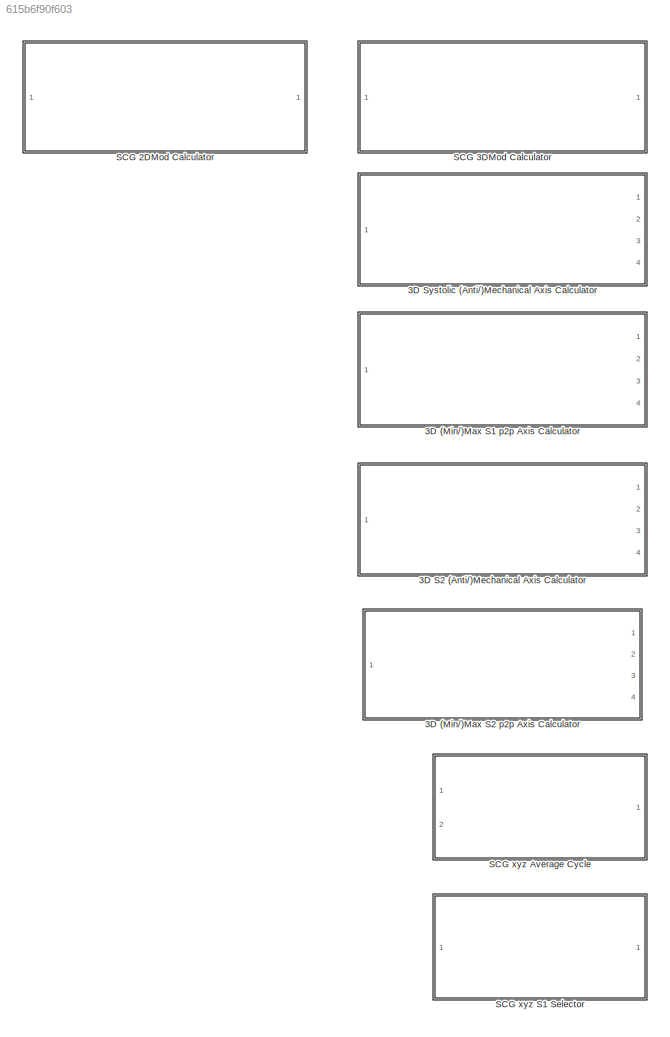
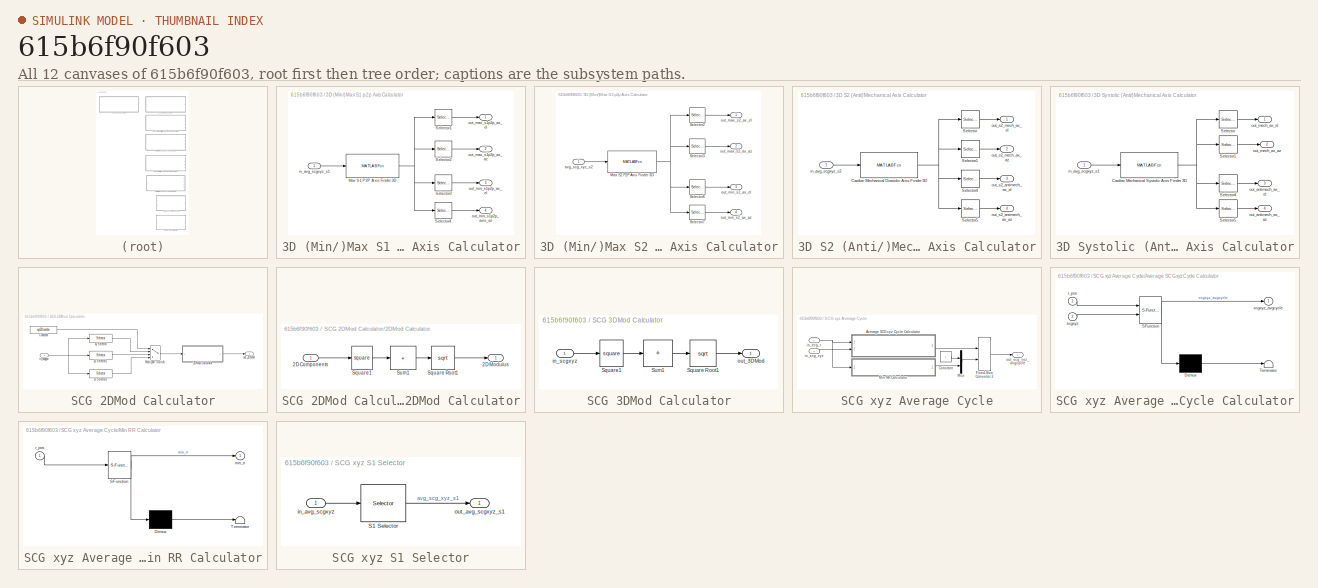
[diagram: thumbnail index - all 12 canvases of the model, root first then tree order]
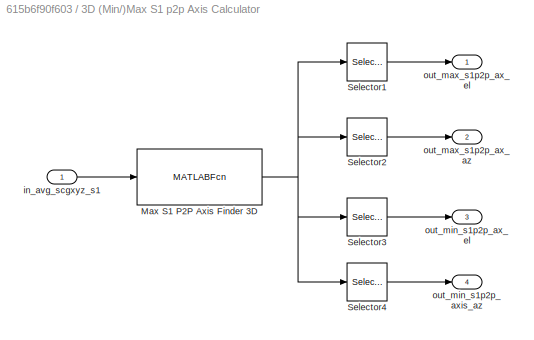
MODEL slx_615b6f90f603
KIND library
CONFIG AbsTol = auto
CONFIG EnableMultiTasking = off
CONFIG FixedStep = auto
CONFIG MaxStep = auto
CONFIG MinStep = auto
CONFIG RelTol = 1e-3
CONFIG SampleTimeConstraint = Unconstrained
CONFIG SolverName = VariableStepAuto
CONFIG StartTime = 0.0
CONFIG StopTime = 10.0
BLOCK [SubSystem] 3D (Min//)Max S1 p2p Axis Calculator
  Ports = [1, 4]
  RequestExecContextInheritance = off
BLOCK [MATLABFcn] 3D (Min//)Max S1 p2p Axis Calculator/Max S1 P2P Axis Finder 3D
  MATLABFcn = cardiac_max_s1p2p_axis_finder
  Output1D = off
  OutputDimensions = 4
  Ports = [1, 1]
BLOCK [Selector] 3D (Min//)Max S1 p2p Axis Calculator/Selector1
  IndexOptions = Index vector (dialog)
  Indices = [1]
  InputPortWidth = 4
  OutputSizes = 1
  Ports = [1, 1]
BLOCK [Selector] 3D (Min//)Max S1 p2p Axis Calculator/Selector2
  IndexOptions = Index vector (dialog)
  Indices = [2]
  InputPortWidth = 4
  OutputSizes = 1
  Ports = [1, 1]
BLOCK [Selector] 3D (Min//)Max S1 p2p Axis Calculator/Selector3
  IndexOptions = Index vector (dialog)
  Indices = [3]
  InputPortWidth = 4
  OutputSizes = 1
  Ports = [1, 1]
BLOCK [Selector] 3D (Min//)Max S1 p2p Axis Calculator/Selector4
  IndexOptions = Index vector (dialog)
  Indices = [4]
  InputPortWidth = 4
  OutputSizes = 1
  Ports = [1, 1]
BLOCK [Inport] 3D (Min//)Max S1 p2p Axis Calculator/in_avg_scgxyz_s1
  NameLocation = left
BLOCK [Outport] 3D (Min//)Max S1 p2p Axis Calculator/out_max_s1p2p_ax_az
  NameLocation = right
  Port = 2
BLOCK [Outport] 3D (Min//)Max S1 p2p Axis Calculator/out_max_s1p2p_ax_el
  NameLocation = right
BLOCK [Outport] 3D (Min//)Max S1 p2p Axis Calculator/out_min_s1p2p_ax_el
  NameLocation = right
  Port = 3
BLOCK [Outport] 3D (Min//)Max S1 p2p Axis Calculator/out_min_s1p2p_axis_az
  NameLocation = right
  Port = 4
BLOCK [SubSystem] 3D (Min//)Max S2 p2p Axis Calculator
  Ports = [1, 4]
  RequestExecContextInheritance = off
BLOCK [MATLABFcn] 3D (Min//)Max S2 p2p Axis Calculator/Max S2 P2P  Axis Finder 3D
  MATLABFcn = cardiac_max_s2p2p_axis_finder_3D
  Output1D = off
  OutputDimensions = 4
  Ports = [1, 1]
BLOCK [Selector] 3D (Min//)Max S2 p2p Axis Calculator/Selector2
  IndexOptions = Index vector (dialog)
  Indices = [1]
  InputPortWidth = 4
  OutputSizes = 1
  Ports = [1, 1]
BLOCK [Selector] 3D (Min//)Max S2 p2p Axis Calculator/Selector3
  IndexOptions = Index vector (dialog)
  Indices = [2]
  InputPortWidth = 4
  OutputSizes = 1
  Ports = [1, 1]
BLOCK [Selector] 3D (Min//)Max S2 p2p Axis Calculator/Selector6
  IndexOptions = Index vector (dialog)
  Indices = [3]
  InputPortWidth = 4
  OutputSizes = 1
  Ports = [1, 1]
BLOCK [Selector] 3D (Min//)Max S2 p2p Axis Calculator/Selector7
  IndexOptions = Index vector (dialog)
  Indices = [4]
  InputPortWidth = 4
  OutputSizes = 1
  Ports = [1, 1]
BLOCK [Inport] 3D (Min//)Max S2 p2p Axis Calculator/avg_scg_xyz_s2
  NameLocation = left
BLOCK [Outport] 3D (Min//)Max S2 p2p Axis Calculator/out_max_s2_ax_az
  NameLocation = right
  Port = 2
BLOCK [Outport] 3D (Min//)Max S2 p2p Axis Calculator/out_max_s2_ax_el
  NameLocation = right
BLOCK [Outport] 3D (Min//)Max S2 p2p Axis Calculator/out_min_s2_ax_az
  NameLocation = right
  Port = 4
BLOCK [Outport] 3D (Min//)Max S2 p2p Axis Calculator/out_min_s2_ax_el
  NameLocation = right
  Port = 3
BLOCK [SubSystem] 3D S2 (Anti//)Mechanical Axis Calculator
  Ports = [1, 4]
  RequestExecContextInheritance = off
BLOCK [MATLABFcn] 3D S2 (Anti//)Mechanical Axis Calculator/Cardiac Mechanical Diastolic Axis Finder 3D
  MATLABFcn = cardiac_mech_diastolic_axis_finder_3D
  Output1D = off
  OutputDimensions = 4
  Ports = [1, 1]
BLOCK [Selector] 3D S2 (Anti//)Mechanical Axis Calculator/Selector
  IndexOptions = Index vector (dialog)
  Indices = [1]
  InputPortWidth = 4
  OutputSizes = 1
  Ports = [1, 1]
BLOCK [Selector] 3D S2 (Anti//)Mechanical Axis Calculator/Selector1
  IndexOptions = Index vector (dialog)
  Indices = [2]
  InputPortWidth = 4
  OutputSizes = 1
  Ports = [1, 1]
BLOCK [Selector] 3D S2 (Anti//)Mechanical Axis Calculator/Selector4
  IndexOptions = Index vector (dialog)
  Indices = [3]
  InputPortWidth = 4
  OutputSizes = 1
  Ports = [1, 1]
BLOCK [Selector] 3D S2 (Anti//)Mechanical Axis Calculator/Selector5
  IndexOptions = Index vector (dialog)
  Indices = [4]
  InputPortWidth = 4
  OutputSizes = 1
  Ports = [1, 1]
BLOCK [Inport] 3D S2 (Anti//)Mechanical Axis Calculator/in_avg_scgxyz_s2
BLOCK [Outport] 3D S2 (Anti//)Mechanical Axis Calculator/out_s2_antimech_ax_az
  NameLocation = right
  Port = 4
BLOCK [Outport] 3D S2 (Anti//)Mechanical Axis Calculator/out_s2_antimech_ax_el
  NameLocation = right
  Port = 3
BLOCK [Outport] 3D S2 (Anti//)Mechanical Axis Calculator/out_s2_mech_ax_az
  NameLocation = right
  Port = 2
BLOCK [Outport] 3D S2 (Anti//)Mechanical Axis Calculator/out_s2_mech_ax_el
  NameLocation = right
BLOCK [SubSystem] 3D Systolic (Anti//)Mechanical Axis Calculator
  Ports = [1, 4]
  RequestExecContextInheritance = off
BLOCK [MATLABFcn] 3D Systolic (Anti//)Mechanical Axis Calculator/Cardiac Mechanical Systolic Axis Finder 3D
  MATLABFcn = cardiac_mech_systolic_axis_finder_3D
  Output1D = off
  OutputDimensions = 4
  Ports = [1, 1]
BLOCK [Selector] 3D Systolic (Anti//)Mechanical Axis Calculator/Selector
  IndexOptions = Index vector (dialog)
  Indices = [1]
  InputPortWidth = 4
  OutputSizes = 1
  Ports = [1, 1]
BLOCK [Selector] 3D Systolic (Anti//)Mechanical Axis Calculator/Selector1
  IndexOptions = Index vector (dialog)
  Indices = [2]
  InputPortWidth = 4
  OutputSizes = 1
  Ports = [1, 1]
BLOCK [Selector] 3D Systolic (Anti//)Mechanical Axis Calculator/Selector4
  IndexOptions = Index vector (dialog)
  Indices = [3]
  InputPortWidth = 4
  OutputSizes = 1
  Ports = [1, 1]
BLOCK [Selector] 3D Systolic (Anti//)Mechanical Axis Calculator/Selector5
  IndexOptions = Index vector (dialog)
  Indices = [4]
  InputPortWidth = 4
  OutputSizes = 1
  Ports = [1, 1]
BLOCK [Inport] 3D Systolic (Anti//)Mechanical Axis Calculator/in_avg_scgxyz_s1
BLOCK [Outport] 3D Systolic (Anti//)Mechanical Axis Calculator/out_antimech_ax_az
  NameLocation = right
  Port = 4
BLOCK [Outport] 3D Systolic (Anti//)Mechanical Axis Calculator/out_antimech_ax_el
  NameLocation = right
  Port = 3
BLOCK [Outport] 3D Systolic (Anti//)Mechanical Axis Calculator/out_mech_ax_az
  NameLocation = right
  Port = 2
BLOCK [Outport] 3D Systolic (Anti//)Mechanical Axis Calculator/out_mech_ax_el
  NameLocation = right
BLOCK [SubSystem] SCG 2DMod Calculator
  Ports = [1, 1]
  RequestExecContextInheritance = off
BLOCK [SubSystem] SCG 2DMod Calculator/2DMod Calculator
  Ports = [1, 1]
  RequestExecContextInheritance = off
BLOCK [Inport] SCG 2DMod Calculator/2DMod Calculator/2D Components
BLOCK [Outport] SCG 2DMod Calculator/2DMod Calculator/2D Modulus
  VectorParamsAs1DForOutWhenUnconnected = off
BLOCK [Sqrt] SCG 2DMod Calculator/2DMod Calculator/Square Root1
BLOCK [Math] SCG 2DMod Calculator/2DMod Calculator/Square1
  Operator = square
  Ports = [1, 1]
  SignedPower = on
BLOCK [Sum] SCG 2DMod Calculator/2DMod Calculator/Sum1
  CollapseDim = 2
  CollapseMode = Specified dimension
  IconShape = rectangular
  Inputs = +
  Ports = [1, 1]
BLOCK [Constant] SCG 2DMod Calculator/Constant
  Value = xyz2Dcombo
BLOCK [MultiPortSwitch] SCG 2DMod Calculator/Multiport Switch
  InputSameDT = off
  Ports = [4, 1]
  SaturateOnIntegerOverflow = off
BLOCK [Inport] SCG 2DMod Calculator/in_scgxyz
BLOCK [Outport] SCG 2DMod Calculator/out_2DMod
  VectorParamsAs1DForOutWhenUnconnected = off
BLOCK [Selector] SCG 2DMod Calculator/xy Selector
  IndexOptions = Select all,Index vector (dialog)
  Indices = [1:min(analyses.ecg.RR)],[1 2]
  NumberOfDimensions = 2
  OutputSizes = 1,1
  Ports = [1, 1]
BLOCK [Selector] SCG 2DMod Calculator/xz Selector2
  IndexOptions = Select all,Index vector (dialog)
  Indices = [1:min(analyses.ecg.RR)],[1 3]
  NumberOfDimensions = 2
  OutputSizes = 1,1
  Ports = [1, 1]
BLOCK [Selector] SCG 2DMod Calculator/yz Selector1
  IndexOptions = Select all,Index vector (dialog)
  Indices = [1:min(analyses.ecg.RR)],[2 3]
  NumberOfDimensions = 2
  OutputSizes = 1,1
  Ports = [1, 1]
BLOCK [SubSystem] SCG 3DMod Calculator
  Ports = [1, 1]
  RequestExecContextInheritance = off
BLOCK [Sqrt] SCG 3DMod Calculator/Square Root1
BLOCK [Math] SCG 3DMod Calculator/Square1
  Operator = square
  Ports = [1, 1]
  SignedPower = on
BLOCK [Sum] SCG 3DMod Calculator/Sum1
  CollapseDim = 2
  CollapseMode = Specified dimension
  IconShape = rectangular
  Inputs = +
  Ports = [1, 1]
BLOCK [Inport] SCG 3DMod Calculator/in_scgxyz
BLOCK [Outport] SCG 3DMod Calculator/out_3DMod
  VectorParamsAs1DForOutWhenUnconnected = off
BLOCK [SubSystem] SCG xyz Average Cycle
  Ports = [2, 1]
  RequestExecContextInheritance = off
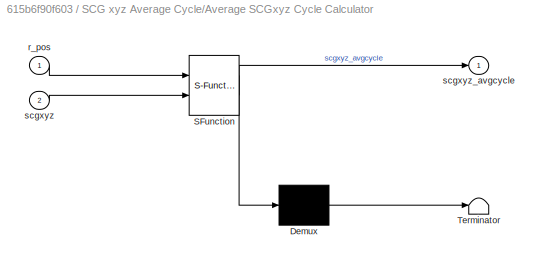
BLOCK [SubSystem] SCG xyz Average Cycle/Average SCGxyz Cycle Calculator
  ErrorFcn = Stateflow.Translate.translate
  NameLocation = top
  PermitHierarchicalResolution = ExplicitOnly
  Ports = [2, 1]
  RequestExecContextInheritance = off
  SFBlockType = MATLAB Function
  TreatAsAtomicUnit = on
BLOCK [Demux] SCG xyz Average Cycle/Average SCGxyz Cycle Calculator/ Demux 
  Outputs = 1
  Ports = [1, 1]
BLOCK [S-Function] SCG xyz Average Cycle/Average SCGxyz Cycle Calculator/ SFunction 
  EnableBusSupport = on
  FunctionName = sf_sfun
  PortCounts = [2 2]
  Ports = [2, 2]
  SFcnIsStateOwnerBlock = off
  SFunctionDeploymentMode = off
  Tag = Stateflow S-Function 15
BLOCK [Terminator] SCG xyz Average Cycle/Average SCGxyz Cycle Calculator/ Terminator 
BLOCK [Inport] SCG xyz Average Cycle/Average SCGxyz Cycle Calculator/r_pos
BLOCK [Inport] SCG xyz Average Cycle/Average SCGxyz Cycle Calculator/scgxyz
  Port = 2
BLOCK [Outport] SCG xyz Average Cycle/Average SCGxyz Cycle Calculator/scgxyz_avgcycle
  VectorParamsAs1DForOutWhenUnconnected = off
BLOCK [Constant] SCG xyz Average Cycle/Constant
BLOCK [Selector] SCG xyz Average Cycle/Fixed-Size Converter 2
  IndexOptions = Starting and ending indices (port),Index vector (dialog)
  Indices = [1:min(analyses.ecg.RR)],[1 2 3]
  NumberOfDimensions = 2
  OutputSizes = 1,1
  Ports = [2, 1]
BLOCK [SubSystem] SCG xyz Average Cycle/Min RR Calculator
  ErrorFcn = Stateflow.Translate.translate
  PermitHierarchicalResolution = ExplicitOnly
  Ports = [1, 1]
  RequestExecContextInheritance = off
  SFBlockType = MATLAB Function
  TreatAsAtomicUnit = on
BLOCK [Demux] SCG xyz Average Cycle/Min RR Calculator/ Demux 
  Outputs = 1
  Ports = [1, 1]
BLOCK [S-Function] SCG xyz Average Cycle/Min RR Calculator/ SFunction 
  EnableBusSupport = on
  FunctionName = sf_sfun
  PortCounts = [1 2]
  Ports = [1, 2]
  SFcnIsStateOwnerBlock = off
  SFunctionDeploymentMode = off
  Tag = Stateflow S-Function 16
BLOCK [Terminator] SCG xyz Average Cycle/Min RR Calculator/ Terminator 
BLOCK [Outport] SCG xyz Average Cycle/Min RR Calculator/min_rr
  VectorParamsAs1DForOutWhenUnconnected = off
BLOCK [Inport] SCG xyz Average Cycle/Min RR Calculator/r_pos
BLOCK [Mux] SCG xyz Average Cycle/Mux
  DisplayOption = bar
  Inputs = 2
  Ports = [2, 1]
BLOCK [Inport] SCG xyz Average Cycle/in_ecg_r
  NameLocation = left
BLOCK [Inport] SCG xyz Average Cycle/in_scg_xyz
  NameLocation = left
  Port = 2
BLOCK [Outport] SCG xyz Average Cycle/out_scg_xyz_avgcycle
  NameLocation = right
  VectorParamsAs1DForOutWhenUnconnected = off
BLOCK [SubSystem] SCG xyz S1 Selector
  Ports = [1, 1]
  RequestExecContextInheritance = off
BLOCK [Selector] SCG xyz S1 Selector/S1 Selector
  IndexOptions = Index vector (dialog),Index vector (dialog)
  Indices = [1:fs*0.2],[1 2 3]
  InputPortWidth = 3
  NumberOfDimensions = 2
  OutputSizes = 1,1
  Ports = [1, 1]
BLOCK [Inport] SCG xyz S1 Selector/in_avg_scgxyz
  NameLocation = left
BLOCK [Outport] SCG xyz S1 Selector/out_avg_scgxyz_s1
  NameLocation = right
NET 3D (Min//)Max S1 p2p Axis Calculator/Max S1 P2P Axis Finder 3D:1 -> 3D (Min//)Max S1 p2p Axis Calculator/Selector1:1, 3D (Min//)Max S1 p2p Axis Calculator/Selector2:1, 3D (Min//)Max S1 p2p Axis Calculator/Selector3:1, 3D (Min//)Max S1 p2p Axis Calculator/Selector4:1
LINE 3D (Min//)Max S1 p2p Axis Calculator/Selector1:1 -> 3D (Min//)Max S1 p2p Axis Calculator/out_max_s1p2p_ax_el:1
LINE 3D (Min//)Max S1 p2p Axis Calculator/Selector2:1 -> 3D (Min//)Max S1 p2p Axis Calculator/out_max_s1p2p_ax_az:1
LINE 3D (Min//)Max S1 p2p Axis Calculator/Selector3:1 -> 3D (Min//)Max S1 p2p Axis Calculator/out_min_s1p2p_ax_el:1
LINE 3D (Min//)Max S1 p2p Axis Calculator/Selector4:1 -> 3D (Min//)Max S1 p2p Axis Calculator/out_min_s1p2p_axis_az:1
LINE 3D (Min//)Max S1 p2p Axis Calculator/in_avg_scgxyz_s1:1 -> 3D (Min//)Max S1 p2p Axis Calculator/Max S1 P2P Axis Finder 3D:1
NET 3D (Min//)Max S2 p2p Axis Calculator/Max S2 P2P  Axis Finder 3D:1 -> 3D (Min//)Max S2 p2p Axis Calculator/Selector2:1, 3D (Min//)Max S2 p2p Axis Calculator/Selector3:1, 3D (Min//)Max S2 p2p Axis Calculator/Selector6:1, 3D (Min//)Max S2 p2p Axis Calculator/Selector7:1
LINE 3D (Min//)Max S2 p2p Axis Calculator/Selector2:1 -> 3D (Min//)Max S2 p2p Axis Calculator/out_max_s2_ax_el:1
LINE 3D (Min//)Max S2 p2p Axis Calculator/Selector3:1 -> 3D (Min//)Max S2 p2p Axis Calculator/out_max_s2_ax_az:1
LINE 3D (Min//)Max S2 p2p Axis Calculator/Selector6:1 -> 3D (Min//)Max S2 p2p Axis Calculator/out_min_s2_ax_el:1
LINE 3D (Min//)Max S2 p2p Axis Calculator/Selector7:1 -> 3D (Min//)Max S2 p2p Axis Calculator/out_min_s2_ax_az:1
LINE 3D (Min//)Max S2 p2p Axis Calculator/avg_scg_xyz_s2:1 -> 3D (Min//)Max S2 p2p Axis Calculator/Max S2 P2P  Axis Finder 3D:1
NET 3D S2 (Anti//)Mechanical Axis Calculator/Cardiac Mechanical Diastolic Axis Finder 3D:1 -> 3D S2 (Anti//)Mechanical Axis Calculator/Selector1:1, 3D S2 (Anti//)Mechanical Axis Calculator/Selector4:1, 3D S2 (Anti//)Mechanical Axis Calculator/Selector5:1, 3D S2 (Anti//)Mechanical Axis Calculator/Selector:1
LINE 3D S2 (Anti//)Mechanical Axis Calculator/Selector1:1 -> 3D S2 (Anti//)Mechanical Axis Calculator/out_s2_mech_ax_az:1
LINE 3D S2 (Anti//)Mechanical Axis Calculator/Selector4:1 -> 3D S2 (Anti//)Mechanical Axis Calculator/out_s2_antimech_ax_el:1
LINE 3D S2 (Anti//)Mechanical Axis Calculator/Selector5:1 -> 3D S2 (Anti//)Mechanical Axis Calculator/out_s2_antimech_ax_az:1
LINE 3D S2 (Anti//)Mechanical Axis Calculator/Selector:1 -> 3D S2 (Anti//)Mechanical Axis Calculator/out_s2_mech_ax_el:1
LINE 3D S2 (Anti//)Mechanical Axis Calculator/in_avg_scgxyz_s2:1 -> 3D S2 (Anti//)Mechanical Axis Calculator/Cardiac Mechanical Diastolic Axis Finder 3D:1
NET 3D Systolic (Anti//)Mechanical Axis Calculator/Cardiac Mechanical Systolic Axis Finder 3D:1 -> 3D Systolic (Anti//)Mechanical Axis Calculator/Selector1:1, 3D Systolic (Anti//)Mechanical Axis Calculator/Selector4:1, 3D Systolic (Anti//)Mechanical Axis Calculator/Selector5:1, 3D Systolic (Anti//)Mechanical Axis Calculator/Selector:1
LINE 3D Systolic (Anti//)Mechanical Axis Calculator/Selector1:1 -> 3D Systolic (Anti//)Mechanical Axis Calculator/out_mech_ax_az:1
LINE 3D Systolic (Anti//)Mechanical Axis Calculator/Selector4:1 -> 3D Systolic (Anti//)Mechanical Axis Calculator/out_antimech_ax_el:1
LINE 3D Systolic (Anti//)Mechanical Axis Calculator/Selector5:1 -> 3D Systolic (Anti//)Mechanical Axis Calculator/out_antimech_ax_az:1
LINE 3D Systolic (Anti//)Mechanical Axis Calculator/Selector:1 -> 3D Systolic (Anti//)Mechanical Axis Calculator/out_mech_ax_el:1
LINE 3D Systolic (Anti//)Mechanical Axis Calculator/in_avg_scgxyz_s1:1 -> 3D Systolic (Anti//)Mechanical Axis Calculator/Cardiac Mechanical Systolic Axis Finder 3D:1
LINE SCG 2DMod Calculator/2DMod Calculator/2D Components:1 -> SCG 2DMod Calculator/2DMod Calculator/Square1:1
LINE SCG 2DMod Calculator/2DMod Calculator/Square Root1:1 -> SCG 2DMod Calculator/2DMod Calculator/2D Modulus:1
LINE SCG 2DMod Calculator/2DMod Calculator/Square1:1 -> SCG 2DMod Calculator/2DMod Calculator/Sum1:1
LINE SCG 2DMod Calculator/2DMod Calculator/Sum1:1 -> SCG 2DMod Calculator/2DMod Calculator/Square Root1:1
LINE SCG 2DMod Calculator/2DMod Calculator:1 -> SCG 2DMod Calculator/out_2DMod:1
LINE SCG 2DMod Calculator/Constant:1 -> SCG 2DMod Calculator/Multiport Switch:1
LINE SCG 2DMod Calculator/Multiport Switch:1 -> SCG 2DMod Calculator/2DMod Calculator:1
NET SCG 2DMod Calculator/in_scgxyz:1 -> SCG 2DMod Calculator/xy Selector:1, SCG 2DMod Calculator/xz Selector2:1, SCG 2DMod Calculator/yz Selector1:1
LINE SCG 2DMod Calculator/xy Selector:1 -> SCG 2DMod Calculator/Multiport Switch:2
LINE SCG 2DMod Calculator/xz Selector2:1 -> SCG 2DMod Calculator/Multiport Switch:4
LINE SCG 2DMod Calculator/yz Selector1:1 -> SCG 2DMod Calculator/Multiport Switch:3
LINE SCG 3DMod Calculator/Square Root1:1 -> SCG 3DMod Calculator/out_3DMod:1
LINE SCG 3DMod Calculator/Square1:1 -> SCG 3DMod Calculator/Sum1:1
LINE SCG 3DMod Calculator/Sum1:1 -> SCG 3DMod Calculator/Square Root1:1
LINE SCG 3DMod Calculator/in_scgxyz:1 -> SCG 3DMod Calculator/Square1:1
LINE SCG xyz Average Cycle/Average SCGxyz Cycle Calculator:1 -> SCG xyz Average Cycle/Fixed-Size Converter 2:1
LINE SCG xyz Average Cycle/Constant:1 -> SCG xyz Average Cycle/Mux:1
LINE SCG xyz Average Cycle/Fixed-Size Converter 2:1 -> SCG xyz Average Cycle/out_scg_xyz_avgcycle:1
LINE SCG xyz Average Cycle/Min RR Calculator:1 -> SCG xyz Average Cycle/Mux:2
LINE SCG xyz Average Cycle/Mux:1 -> SCG xyz Average Cycle/Fixed-Size Converter 2:2
NET SCG xyz Average Cycle/in_ecg_r:1 -> SCG xyz Average Cycle/Average SCGxyz Cycle Calculator:1, SCG xyz Average Cycle/Min RR Calculator:1
LINE SCG xyz Average Cycle/in_scg_xyz:1 -> SCG xyz Average Cycle/Average SCGxyz Cycle Calculator:2
LINE SCG xyz S1 Selector/S1 Selector:1 -> SCG xyz S1 Selector/out_avg_scgxyz_s1:1
LINE SCG xyz S1 Selector/in_avg_scgxyz:1 -> SCG xyz S1 Selector/S1 Selector:1
note: NET lines group one-source signal fan-out (src -> all destinations, sorted); 1:1 wires keep LINE
CHART SCG xyz Average Cycle/Average SCGxyz Cycle Calculator states=1 transitions=1
  STATE_LABEL 'eML_blk_kernel()'
  STATE_LABEL 'SCRIPT:\nfunction scgxyz_avgcycle  = slk_avg_scgxyz_cycle_calculator(r_pos,scgxyz)\n% Simulink function to return the average x,y, and z cycles of the SCG.\n\n% INPUTS:\n% r_pos = index positions of the R peaks of the ecg.\n% scgxyz = matrix of size [length_scg 3] with the (normally pre-processed) SCG\n%          x,y, and z components. The first column corresponds to SCGx, the second\n%          to SCGy a...<+1757ch>'
CHART SCG xyz Average Cycle/Min RR Calculator states=1 transitions=1
  STATE_LABEL 'eML_blk_kernel()'
  STATE_LABEL 'SCRIPT:\nfunction min_rr  = slk_min_rr_calculator(r_pos)\n% Simulink function to calculate the shortest RR interval from a sequence\n% of R peak inputs.\n\n% INPUTS:\n% r_pos = index positions of the R peaks of the ecg.\n\n% OUTPUT:\n% min_rr = minimum RR interval.\n\nif r_pos % Only enter the function if a valid r_pos sequence is passed to it.\n    min_rr = min(diff(r_pos)); % Shortest cycle length - all the...<+70ch>'
CHART  states=0 transitions=0
CHART  states=0 transitions=0
